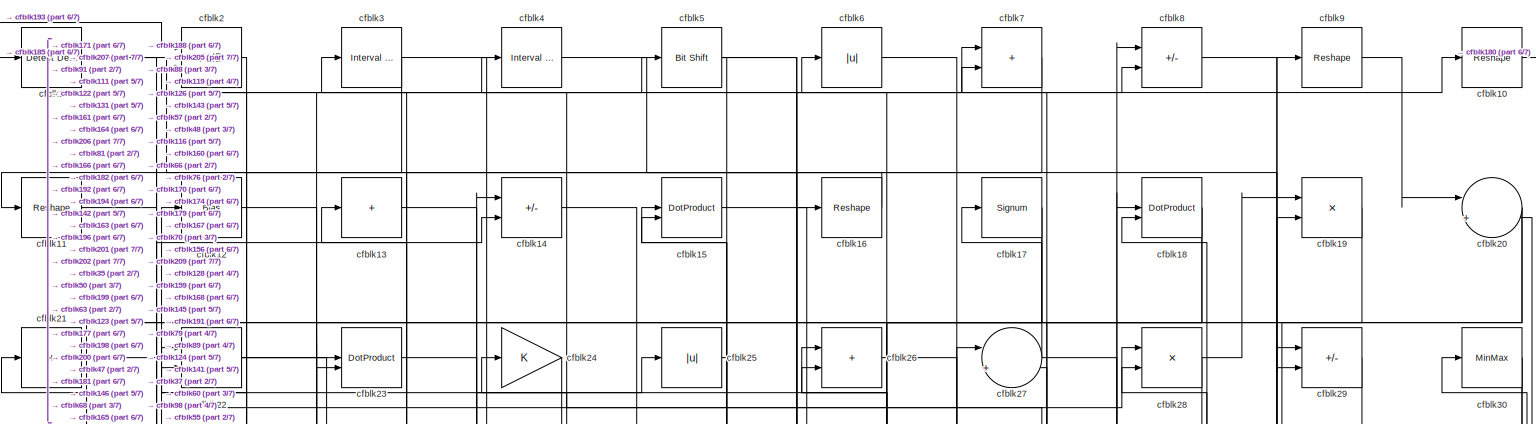
[diagram: root canvas - part 1/7, full width, top band]
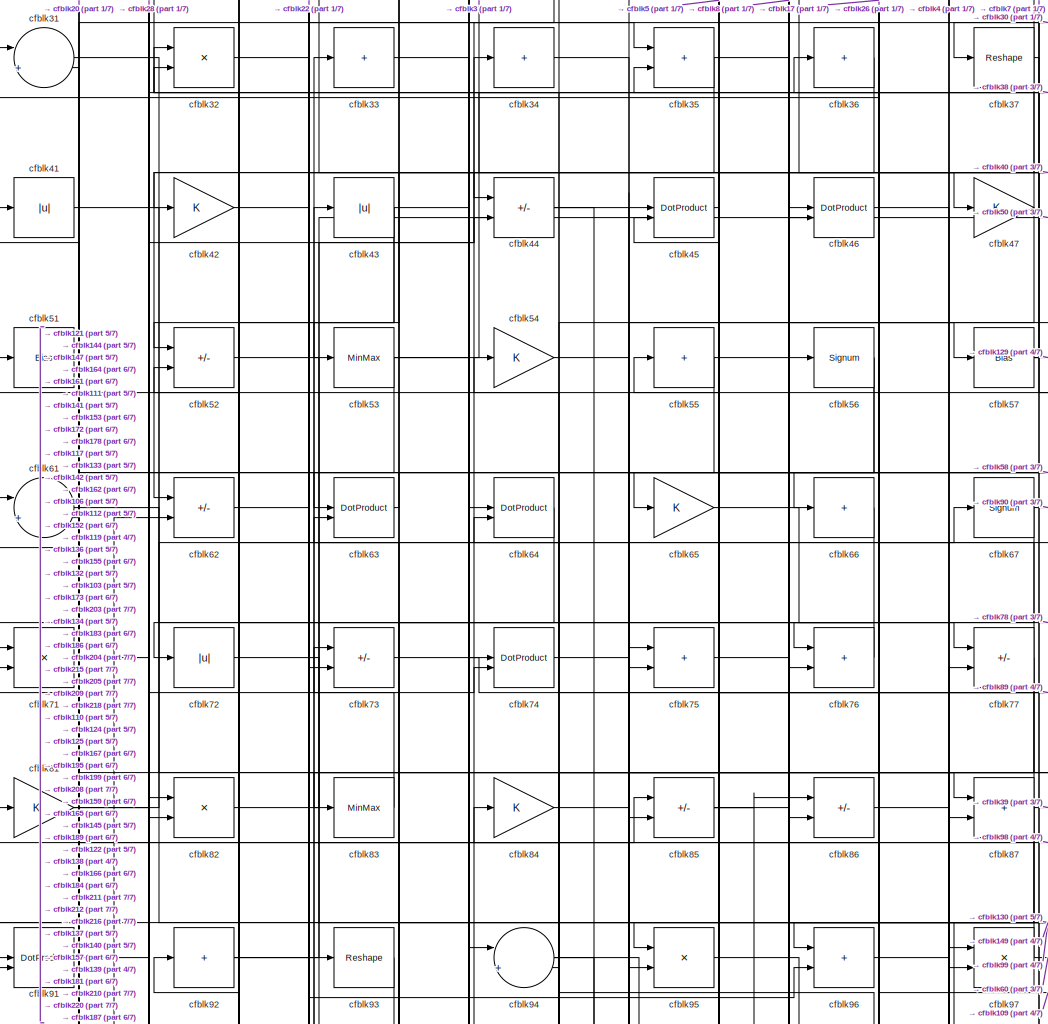
[diagram: root canvas - part 2/7, top center region]
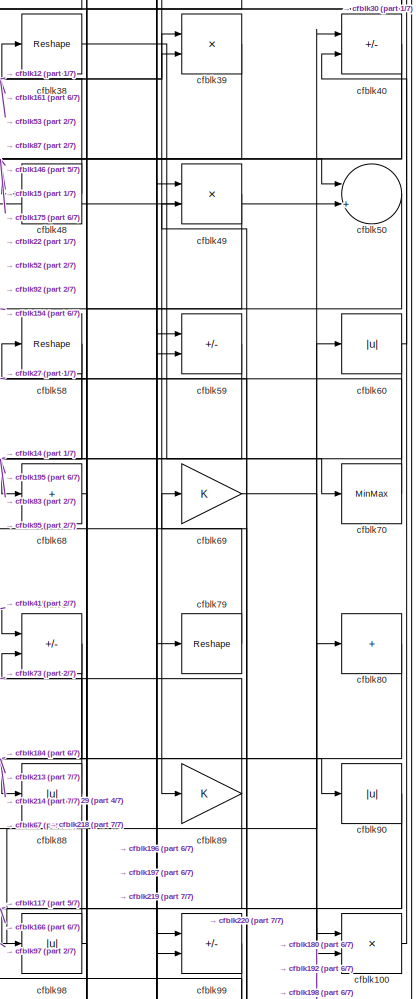
[diagram: root canvas - part 3/7, top right region]
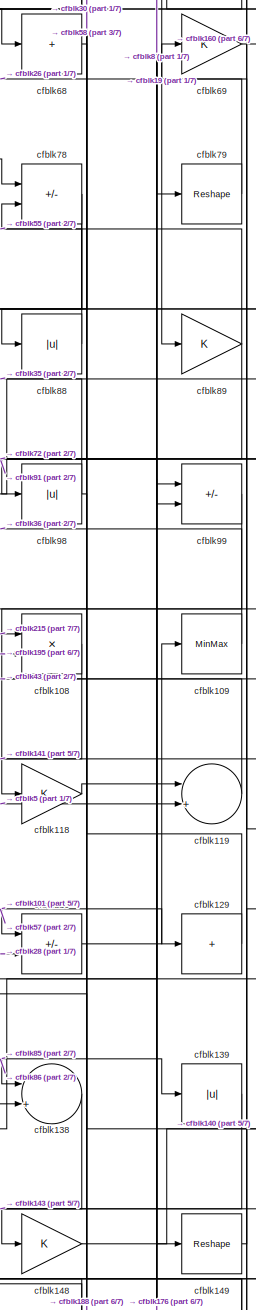
[diagram: root canvas - part 4/7, middle right region]
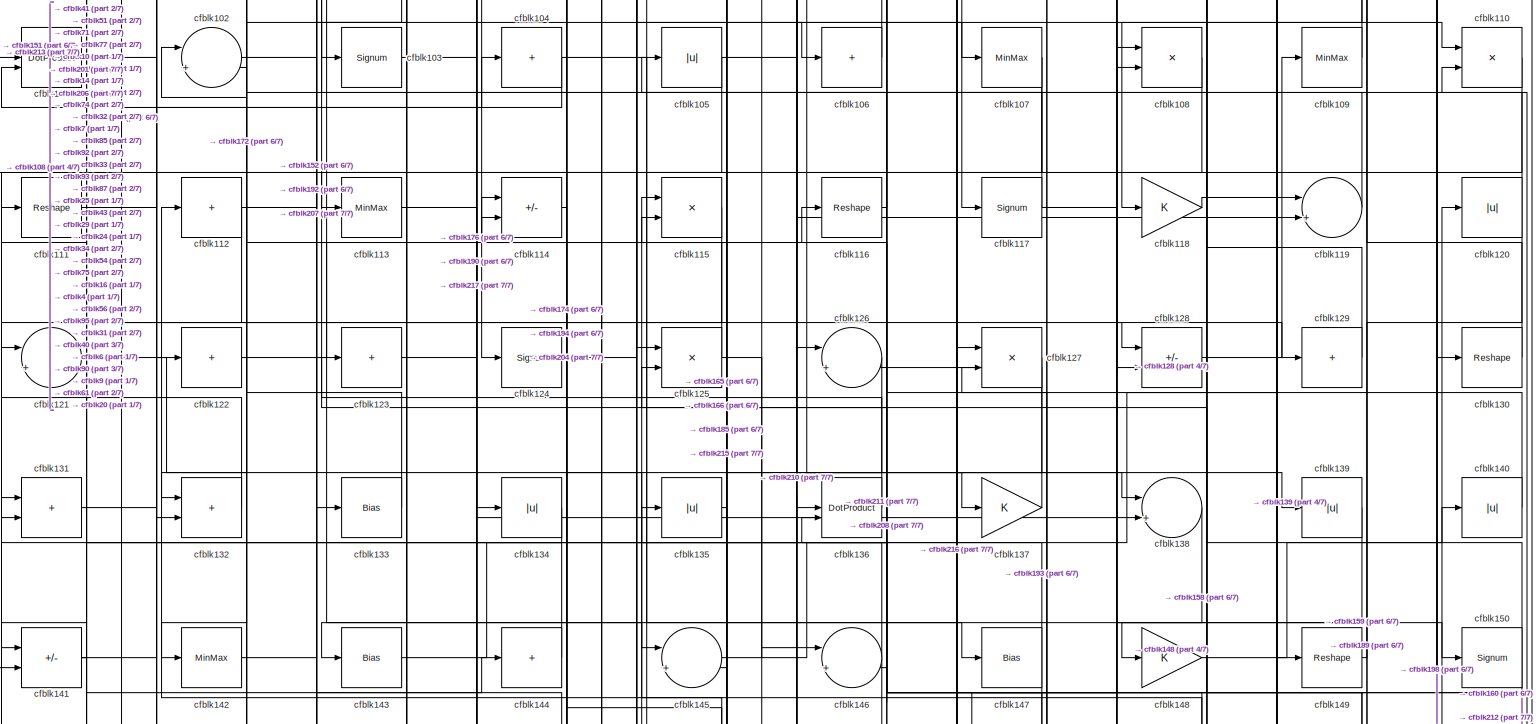
[diagram: root canvas - part 5/7, full width, middle band]
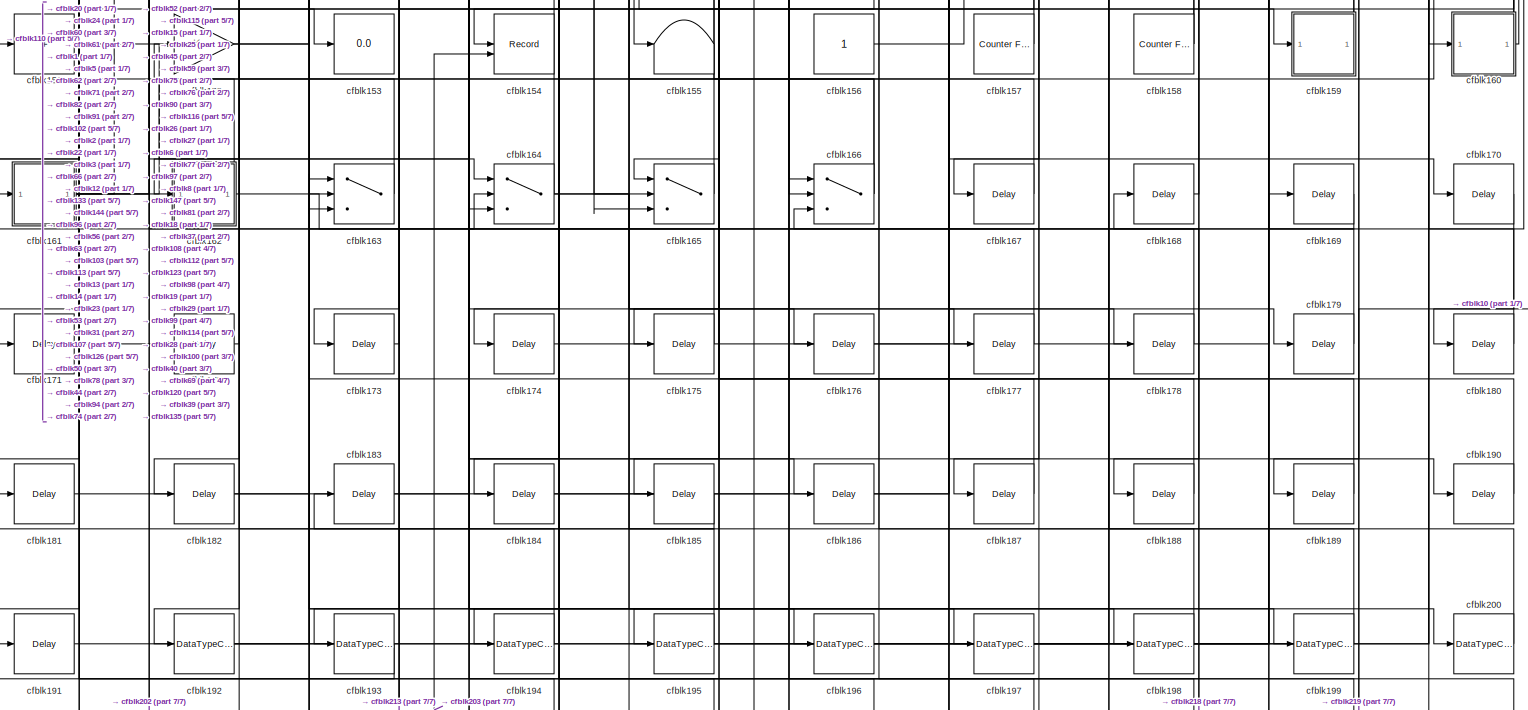
[diagram: root canvas - part 6/7, full width, bottom band]
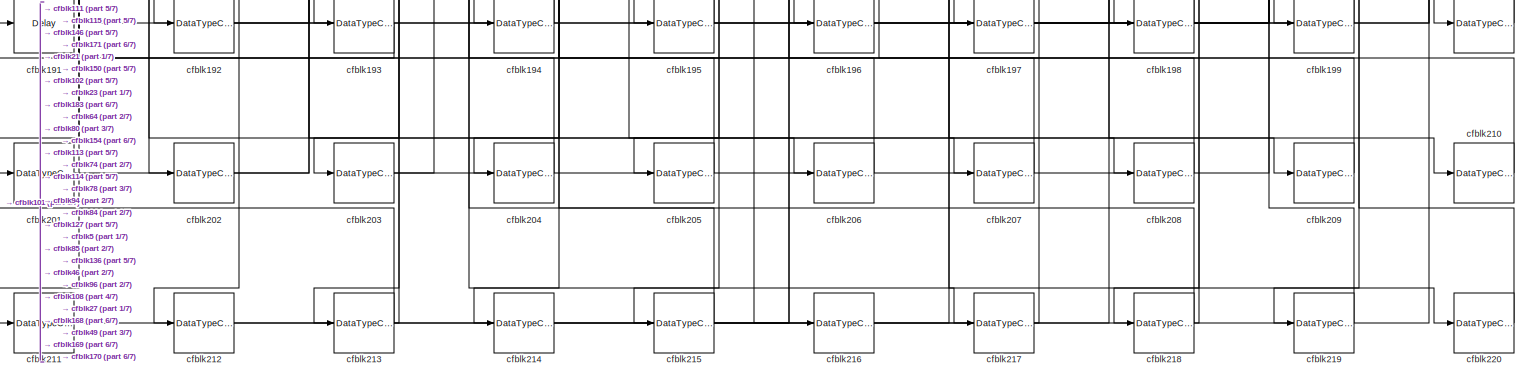
[diagram: root canvas - part 7/7, full width, bottom band]
MODEL slx_d883aa3ffad5
KIND model
CONFIG AbsTol = auto
CONFIG EnableMultiTasking = off
CONFIG FixedStep = auto
CONFIG MaxStep = auto
CONFIG MinStep = auto
CONFIG RelTol = 1e-3
CONFIG SampleTimeConstraint = Unconstrained
CONFIG SolverName = VariableStepAuto
CONFIG StartTime = 0.0
CONFIG StopTime = 10.0
BLOCK [Reference] cfblk1  REF=simulink/Logic and Bit
Operations/Detect
Decrease
  LibrarySourceBlock = hdlsllib/Logic and Bit\nOperations/Detect\nDecrease
  SourceBlock = simulink/Logic and Bit\nOperations/Detect\nDecrease
  SourceType = Detect Decrease
BLOCK [Reshape] cfblk10
BLOCK [Product] cfblk100
  Inputs = */
  RndMeth = Zero
  SaturateOnIntegerOverflow = on
BLOCK [DotProduct] cfblk101
  OutDataTypeStr = Inherit: Inherit via internal rule
BLOCK [Sum] cfblk102
  Inputs = |++
BLOCK [Signum] cfblk103
BLOCK [Sum] cfblk104
  IconShape = rectangular
  Inputs = +
BLOCK [Abs] cfblk105
  SaturateOnIntegerOverflow = off
BLOCK [Sum] cfblk106
  IconShape = rectangular
  Inputs = +
BLOCK [MinMax] cfblk107
BLOCK [Product] cfblk108
  Inputs = */
  RndMeth = Zero
  SaturateOnIntegerOverflow = on
BLOCK [MinMax] cfblk109
BLOCK [Reshape] cfblk11
BLOCK [Product] cfblk110
  Inputs = */
  RndMeth = Zero
  SaturateOnIntegerOverflow = on
BLOCK [Reshape] cfblk111
BLOCK [Sum] cfblk112
  IconShape = rectangular
  Inputs = +
BLOCK [MinMax] cfblk113
BLOCK [Sum] cfblk114
  IconShape = rectangular
  Inputs = +-
BLOCK [Product] cfblk115
  Inputs = */
  RndMeth = Zero
  SaturateOnIntegerOverflow = on
BLOCK [Reshape] cfblk116
BLOCK [Signum] cfblk117
BLOCK [Gain] cfblk118
BLOCK [Sum] cfblk119
  Inputs = |++
BLOCK [Bias] cfblk12
  Bias = 0.0
  SaturateOnIntegerOverflow = off
BLOCK [Abs] cfblk120
  SaturateOnIntegerOverflow = off
BLOCK [Sum] cfblk121
  Inputs = |++
BLOCK [Sum] cfblk122
  IconShape = rectangular
  Inputs = +
BLOCK [Sum] cfblk123
  IconShape = rectangular
  Inputs = +
BLOCK [Signum] cfblk124
BLOCK [Product] cfblk125
  Inputs = */
  RndMeth = Zero
  SaturateOnIntegerOverflow = on
BLOCK [Sum] cfblk126
  Inputs = |++
BLOCK [Product] cfblk127
  Inputs = */
  RndMeth = Zero
  SaturateOnIntegerOverflow = on
BLOCK [Sum] cfblk128
  IconShape = rectangular
  Inputs = +-
BLOCK [Sum] cfblk129
  IconShape = rectangular
  Inputs = +
BLOCK [Sum] cfblk13
  IconShape = rectangular
  Inputs = +
BLOCK [Reshape] cfblk130
BLOCK [Sum] cfblk131
  IconShape = rectangular
BLOCK [Sum] cfblk132
  IconShape = rectangular
BLOCK [Bias] cfblk133
  Bias = 0.0
  SaturateOnIntegerOverflow = off
BLOCK [Abs] cfblk134
  SaturateOnIntegerOverflow = off
BLOCK [Abs] cfblk135
  SaturateOnIntegerOverflow = off
BLOCK [DotProduct] cfblk136
  OutDataTypeStr = Inherit: Inherit via internal rule
BLOCK [Gain] cfblk137
BLOCK [Sum] cfblk138
  Inputs = |++
BLOCK [Abs] cfblk139
  SaturateOnIntegerOverflow = off
BLOCK [Sum] cfblk14
  IconShape = rectangular
  Inputs = +-
BLOCK [Abs] cfblk140
  SaturateOnIntegerOverflow = off
BLOCK [Sum] cfblk141
  IconShape = rectangular
  Inputs = +-
BLOCK [MinMax] cfblk142
BLOCK [Bias] cfblk143
  Bias = 0.0
  SaturateOnIntegerOverflow = off
BLOCK [Sum] cfblk144
  IconShape = rectangular
  Inputs = +
BLOCK [Sum] cfblk145
  Inputs = |++
BLOCK [Sum] cfblk146
  Inputs = |++
BLOCK [Bias] cfblk147
  Bias = 0.0
  SaturateOnIntegerOverflow = off
BLOCK [Gain] cfblk148
BLOCK [Reshape] cfblk149
BLOCK [DotProduct] cfblk15
  OutDataTypeStr = Inherit: Inherit via internal rule
BLOCK [Signum] cfblk150
BLOCK [Sum] cfblk151
  IconShape = rectangular
  Inputs = +
BLOCK [Gain] cfblk152
BLOCK [Display] cfblk153
  Decimation = 1
BLOCK [Record] cfblk154
  CompatibilityTag = XY
  FileSettingsInternal = {"entries":[{"content":{"excelSettings":{"content":{},"type":"Streamout.ExcelSettings"}},"type":"Streamout.FileSettingStorage","uuid":""}],"packageUris":["http:\/\/schema.mathworks.com\/mf0\/streamout_blocks\/R2020a"],"version":"1.0"}
  Layout = [1 1]
  SignalsInternal = {"entries":[{"content":{"signals":[{"content":{"blockPath":[],"dimensions":[1],"domain":"","lineColor":"#a2142f","plots":[1],"port":1,"sid":[""],"signalID":3756,"signalName":"cfblk50"},"type":"RecordBlkView.Signal","uuid":""},{"content":{"blockPath":[],"dimensions":[1],"domain":"","lineColor":"#139fff","plots":[1],"port":2,"sid":[""],"signalID":3760,"signalName":"cfblk203"},"type":"RecordBlkView.S...<+163ch>
  VisualizationBindings = {"xyplotplugin":{"info":[{"series":[{"bindingParametersList":[{"parameter":"X-Axis","signalID":3756,"signalName":"cfblk50"},{"parameter":"Y-Axis","signalID":3760,"signalName":"cfblk203"}],"seriesID":56446}],"subplotID":1}]}}
  st = -1
BLOCK [Terminator] cfblk155
BLOCK [Constant] cfblk156
  SampleTime = -1
BLOCK [Reference] cfblk157  REF=hdlsllib/Sources/Counter
Free-Running
  SourceBlock = hdlsllib/Sources/Counter\nFree-Running
  SourceType = Counter Free-Running
BLOCK [Reference] cfblk158  REF=hdlsllib/Sources/Counter
Free-Running
  SourceBlock = hdlsllib/Sources/Counter\nFree-Running
  SourceType = Counter Free-Running
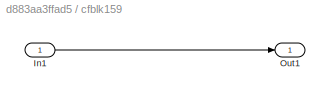
BLOCK [SubSystem] cfblk159
  LibrarySourceBlock = hdlsllib/Ports &\nSubsystems/Subsystem
BLOCK [Inport] cfblk159/In1
BLOCK [Outport] cfblk159/Out1
BLOCK [Reshape] cfblk16
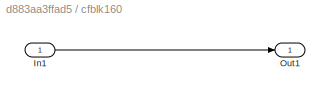
BLOCK [SubSystem] cfblk160
  LibrarySourceBlock = hdlsllib/Ports &\nSubsystems/Subsystem
BLOCK [Inport] cfblk160/In1
BLOCK [Outport] cfblk160/Out1
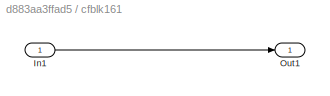
BLOCK [SubSystem] cfblk161
  LibrarySourceBlock = hdlsllib/Ports &\nSubsystems/Subsystem
BLOCK [Inport] cfblk161/In1
BLOCK [Outport] cfblk161/Out1
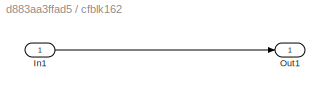
BLOCK [SubSystem] cfblk162
  LibrarySourceBlock = hdlsllib/Ports &\nSubsystems/Subsystem
BLOCK [Inport] cfblk162/In1
BLOCK [Outport] cfblk162/Out1
BLOCK [Switch] cfblk163
  InputSameDT = off
  SaturateOnIntegerOverflow = off
BLOCK [Switch] cfblk164
  InputSameDT = off
  SaturateOnIntegerOverflow = off
BLOCK [Switch] cfblk165
  InputSameDT = off
  SaturateOnIntegerOverflow = off
BLOCK [Switch] cfblk166
  InputSameDT = off
  SaturateOnIntegerOverflow = off
BLOCK [Delay] cfblk167
  InputPortMap = u0
  SampleTime = 1
BLOCK [Delay] cfblk168
  InputPortMap = u0
  SampleTime = 1
BLOCK [Delay] cfblk169
  InputPortMap = u0
  SampleTime = 1
BLOCK [Signum] cfblk17
BLOCK [Delay] cfblk170
  InputPortMap = u0
  SampleTime = 1
BLOCK [Delay] cfblk171
  InputPortMap = u0
  SampleTime = 1
BLOCK [Delay] cfblk172
  InputPortMap = u0
  SampleTime = 1
BLOCK [Delay] cfblk173
  InputPortMap = u0
  SampleTime = 1
BLOCK [Delay] cfblk174
  InputPortMap = u0
  SampleTime = 1
BLOCK [Delay] cfblk175
  InputPortMap = u0
  SampleTime = 1
BLOCK [Delay] cfblk176
  InputPortMap = u0
  SampleTime = 1
BLOCK [Delay] cfblk177
  InputPortMap = u0
  SampleTime = 1
BLOCK [Delay] cfblk178
  InputPortMap = u0
  SampleTime = 1
BLOCK [Delay] cfblk179
  InputPortMap = u0
  SampleTime = 1
BLOCK [DotProduct] cfblk18
  OutDataTypeStr = Inherit: Inherit via internal rule
BLOCK [Delay] cfblk180
  InputPortMap = u0
  SampleTime = 1
BLOCK [Delay] cfblk181
  InputPortMap = u0
  SampleTime = 1
BLOCK [Delay] cfblk182
  InputPortMap = u0
  SampleTime = 1
BLOCK [Delay] cfblk183
  InputPortMap = u0
  SampleTime = 1
BLOCK [Delay] cfblk184
  InputPortMap = u0
  SampleTime = 1
BLOCK [Delay] cfblk185
  InputPortMap = u0
  SampleTime = 1
BLOCK [Delay] cfblk186
  InputPortMap = u0
  SampleTime = 1
BLOCK [Delay] cfblk187
  InputPortMap = u0
  SampleTime = 1
BLOCK [Delay] cfblk188
  InputPortMap = u0
  SampleTime = 1
BLOCK [Delay] cfblk189
  InputPortMap = u0
  SampleTime = 1
BLOCK [Product] cfblk19
  Inputs = */
  RndMeth = Zero
  SaturateOnIntegerOverflow = on
BLOCK [Delay] cfblk190
  InputPortMap = u0
  SampleTime = 1
BLOCK [Delay] cfblk191
  InputPortMap = u0
  SampleTime = 1
BLOCK [DataTypeConversion] cfblk192
  RndMeth = Floor
  SaturateOnIntegerOverflow = off
BLOCK [DataTypeConversion] cfblk193
  OutDataTypeStr = uint8
  RndMeth = Floor
  SaturateOnIntegerOverflow = off
BLOCK [DataTypeConversion] cfblk194
  OutDataTypeStr = uint8
  RndMeth = Floor
  SaturateOnIntegerOverflow = off
BLOCK [DataTypeConversion] cfblk195
  RndMeth = Floor
  SaturateOnIntegerOverflow = off
BLOCK [DataTypeConversion] cfblk196
  OutDataTypeStr = uint8
  RndMeth = Floor
  SaturateOnIntegerOverflow = off
BLOCK [DataTypeConversion] cfblk197
  OutDataTypeStr = uint8
  RndMeth = Floor
  SaturateOnIntegerOverflow = off
BLOCK [DataTypeConversion] cfblk198
  RndMeth = Floor
  SaturateOnIntegerOverflow = off
BLOCK [DataTypeConversion] cfblk199
  OutDataTypeStr = uint8
  RndMeth = Floor
  SaturateOnIntegerOverflow = off
BLOCK [Logic] cfblk2
  AllPortsSameDT = off
  OutDataTypeStr = boolean
BLOCK [Sum] cfblk20
  Inputs = |++
BLOCK [DataTypeConversion] cfblk200
  OutDataTypeStr = uint8
  RndMeth = Floor
  SaturateOnIntegerOverflow = off
BLOCK [DataTypeConversion] cfblk201
  OutDataTypeStr = uint8
  RndMeth = Floor
  SaturateOnIntegerOverflow = off
BLOCK [DataTypeConversion] cfblk202
  OutDataTypeStr = uint8
  RndMeth = Floor
  SaturateOnIntegerOverflow = off
BLOCK [DataTypeConversion] cfblk203
  RndMeth = Floor
  SaturateOnIntegerOverflow = off
BLOCK [DataTypeConversion] cfblk204
  OutDataTypeStr = uint8
  RndMeth = Floor
  SaturateOnIntegerOverflow = off
BLOCK [DataTypeConversion] cfblk205
  OutDataTypeStr = uint8
  RndMeth = Floor
  SaturateOnIntegerOverflow = off
BLOCK [DataTypeConversion] cfblk206
  OutDataTypeStr = uint8
  RndMeth = Floor
  SaturateOnIntegerOverflow = off
BLOCK [DataTypeConversion] cfblk207
  OutDataTypeStr = uint8
  RndMeth = Floor
  SaturateOnIntegerOverflow = off
BLOCK [DataTypeConversion] cfblk208
  OutDataTypeStr = uint8
  RndMeth = Floor
  SaturateOnIntegerOverflow = off
BLOCK [DataTypeConversion] cfblk209
  OutDataTypeStr = uint8
  RndMeth = Floor
  SaturateOnIntegerOverflow = off
BLOCK [Sum] cfblk21
  IconShape = rectangular
  Inputs = +
BLOCK [DataTypeConversion] cfblk210
  OutDataTypeStr = uint8
  RndMeth = Floor
  SaturateOnIntegerOverflow = off
BLOCK [DataTypeConversion] cfblk211
  OutDataTypeStr = uint8
  RndMeth = Floor
  SaturateOnIntegerOverflow = off
BLOCK [DataTypeConversion] cfblk212
  OutDataTypeStr = uint8
  RndMeth = Floor
  SaturateOnIntegerOverflow = off
BLOCK [DataTypeConversion] cfblk213
  RndMeth = Floor
  SaturateOnIntegerOverflow = off
BLOCK [DataTypeConversion] cfblk214
  OutDataTypeStr = uint8
  RndMeth = Floor
  SaturateOnIntegerOverflow = off
BLOCK [DataTypeConversion] cfblk215
  RndMeth = Floor
  SaturateOnIntegerOverflow = off
BLOCK [DataTypeConversion] cfblk216
  OutDataTypeStr = uint8
  RndMeth = Floor
  SaturateOnIntegerOverflow = off
BLOCK [DataTypeConversion] cfblk217
  OutDataTypeStr = uint8
  RndMeth = Floor
  SaturateOnIntegerOverflow = off
BLOCK [DataTypeConversion] cfblk218
  RndMeth = Floor
  SaturateOnIntegerOverflow = off
BLOCK [DataTypeConversion] cfblk219
  OutDataTypeStr = uint8
  RndMeth = Floor
  SaturateOnIntegerOverflow = off
BLOCK [Product] cfblk22
  Inputs = */
  RndMeth = Zero
  SaturateOnIntegerOverflow = on
BLOCK [DataTypeConversion] cfblk220
  OutDataTypeStr = uint8
  RndMeth = Floor
  SaturateOnIntegerOverflow = off
BLOCK [DotProduct] cfblk23
  OutDataTypeStr = Inherit: Inherit via internal rule
BLOCK [Gain] cfblk24
BLOCK [Abs] cfblk25
  SaturateOnIntegerOverflow = off
BLOCK [Sum] cfblk26
  IconShape = rectangular
BLOCK [Sum] cfblk27
  Inputs = |++
BLOCK [Product] cfblk28
  Inputs = */
  RndMeth = Zero
  SaturateOnIntegerOverflow = on
BLOCK [Sum] cfblk29
  IconShape = rectangular
  Inputs = +-
BLOCK [Reference] cfblk3  REF=hdlsllib/Logic and Bit
Operations/Interval Test
  SourceBlock = hdlsllib/Logic and Bit\nOperations/Interval Test
  SourceType = Interval Test
BLOCK [MinMax] cfblk30
BLOCK [Sum] cfblk31
  Inputs = |++
BLOCK [Product] cfblk32
  Inputs = */
  RndMeth = Zero
  SaturateOnIntegerOverflow = on
BLOCK [Sum] cfblk33
  IconShape = rectangular
  Inputs = +
BLOCK [Sum] cfblk34
  IconShape = rectangular
  Inputs = +
BLOCK [Sum] cfblk35
  IconShape = rectangular
BLOCK [Sum] cfblk36
  IconShape = rectangular
  Inputs = +
BLOCK [Reshape] cfblk37
BLOCK [Reshape] cfblk38
BLOCK [Product] cfblk39
  Inputs = */
  RndMeth = Zero
  SaturateOnIntegerOverflow = on
BLOCK [Reference] cfblk4  REF=hdlsllib/Logic and Bit
Operations/Interval Test
  SourceBlock = hdlsllib/Logic and Bit\nOperations/Interval Test
  SourceType = Interval Test
BLOCK [Sum] cfblk40
  IconShape = rectangular
  Inputs = +-
BLOCK [Abs] cfblk41
  SaturateOnIntegerOverflow = off
BLOCK [Gain] cfblk42
BLOCK [Abs] cfblk43
  SaturateOnIntegerOverflow = off
BLOCK [Sum] cfblk44
  IconShape = rectangular
  Inputs = +-
BLOCK [DotProduct] cfblk45
  OutDataTypeStr = Inherit: Inherit via internal rule
BLOCK [DotProduct] cfblk46
  OutDataTypeStr = Inherit: Inherit via internal rule
BLOCK [Gain] cfblk47
BLOCK [Bias] cfblk48
  Bias = 0.0
  SaturateOnIntegerOverflow = off
BLOCK [Product] cfblk49
  Inputs = */
  RndMeth = Zero
  SaturateOnIntegerOverflow = on
BLOCK [Reference] cfblk5  REF=hdlsllib/Logic and Bit
Operations/Bit Shift
  SourceBlock = hdlsllib/Logic and Bit\nOperations/Bit Shift
  SourceType = Bit Shift
BLOCK [Sum] cfblk50
  Inputs = |++
BLOCK [Bias] cfblk51
  Bias = 0.0
  SaturateOnIntegerOverflow = off
BLOCK [Sum] cfblk52
  IconShape = rectangular
  Inputs = +-
BLOCK [MinMax] cfblk53
BLOCK [Gain] cfblk54
BLOCK [Sum] cfblk55
  IconShape = rectangular
  Inputs = +
BLOCK [Signum] cfblk56
BLOCK [Bias] cfblk57
  Bias = 0.0
  SaturateOnIntegerOverflow = off
BLOCK [Reshape] cfblk58
BLOCK [Sum] cfblk59
  IconShape = rectangular
  Inputs = +-
BLOCK [Abs] cfblk6
  SaturateOnIntegerOverflow = off
BLOCK [Abs] cfblk60
  SaturateOnIntegerOverflow = off
BLOCK [Sum] cfblk61
  Inputs = |++
BLOCK [Sum] cfblk62
  IconShape = rectangular
  Inputs = +-
BLOCK [DotProduct] cfblk63
  OutDataTypeStr = Inherit: Inherit via internal rule
BLOCK [DotProduct] cfblk64
  OutDataTypeStr = Inherit: Inherit via internal rule
BLOCK [Gain] cfblk65
BLOCK [Sum] cfblk66
  IconShape = rectangular
  Inputs = +
BLOCK [Signum] cfblk67
BLOCK [Sum] cfblk68
  IconShape = rectangular
  Inputs = +
BLOCK [Gain] cfblk69
BLOCK [Sum] cfblk7
  IconShape = rectangular
BLOCK [MinMax] cfblk70
BLOCK [Product] cfblk71
  Inputs = */
  RndMeth = Zero
  SaturateOnIntegerOverflow = on
BLOCK [Abs] cfblk72
  SaturateOnIntegerOverflow = off
BLOCK [Sum] cfblk73
  IconShape = rectangular
  Inputs = +-
BLOCK [DotProduct] cfblk74
  OutDataTypeStr = Inherit: Inherit via internal rule
BLOCK [Sum] cfblk75
  IconShape = rectangular
BLOCK [Sum] cfblk76
  IconShape = rectangular
BLOCK [Sum] cfblk77
  IconShape = rectangular
  Inputs = +-
BLOCK [Sum] cfblk78
  IconShape = rectangular
  Inputs = +-
BLOCK [Reshape] cfblk79
BLOCK [Sum] cfblk8
  IconShape = rectangular
  Inputs = +-
BLOCK [Sum] cfblk80
  IconShape = rectangular
  Inputs = +
BLOCK [Gain] cfblk81
BLOCK [Product] cfblk82
  Inputs = */
  RndMeth = Zero
  SaturateOnIntegerOverflow = on
BLOCK [MinMax] cfblk83
BLOCK [Gain] cfblk84
BLOCK [Sum] cfblk85
  IconShape = rectangular
  Inputs = +-
BLOCK [Sum] cfblk86
  IconShape = rectangular
  Inputs = +-
BLOCK [Sum] cfblk87
  IconShape = rectangular
BLOCK [Abs] cfblk88
  SaturateOnIntegerOverflow = off
BLOCK [Gain] cfblk89
BLOCK [Reshape] cfblk9
BLOCK [Abs] cfblk90
  SaturateOnIntegerOverflow = off
BLOCK [DotProduct] cfblk91
  OutDataTypeStr = Inherit: Inherit via internal rule
BLOCK [Sum] cfblk92
  IconShape = rectangular
  Inputs = +
BLOCK [Reshape] cfblk93
BLOCK [Sum] cfblk94
  Inputs = |++
BLOCK [Product] cfblk95
  Inputs = */
  RndMeth = Zero
  SaturateOnIntegerOverflow = on
BLOCK [Sum] cfblk96
  IconShape = rectangular
BLOCK [Product] cfblk97
  Inputs = */
  RndMeth = Zero
  SaturateOnIntegerOverflow = on
BLOCK [Abs] cfblk98
  SaturateOnIntegerOverflow = off
BLOCK [Sum] cfblk99
  IconShape = rectangular
  Inputs = +-
LINE cfblk100:1 -> cfblk40:2
LINE cfblk101:1 -> cfblk128:1
LINE cfblk102:1 -> cfblk207:1
LINE cfblk103:1 -> cfblk176:1
NET cfblk104:1 -> cfblk101:2, cfblk147:1
NET cfblk105:1 -> cfblk107:1, cfblk113:1
LINE cfblk106:1 -> cfblk32:1
NET cfblk107:1 -> cfblk132:2, cfblk194:1
LINE cfblk108:1 -> cfblk141:2
LINE cfblk109:1 -> cfblk36:1
LINE cfblk10:1 -> cfblk180:1
LINE cfblk110:1 -> cfblk151:1
NET cfblk111:1 -> cfblk104:1, cfblk14:2, cfblk74:2
NET cfblk112:1 -> cfblk131:1, cfblk85:1
NET cfblk113:1 -> cfblk190:1, cfblk217:1
LINE cfblk114:1 -> cfblk204:1
LINE cfblk115:1 -> cfblk201:1
LINE cfblk116:1 -> cfblk6:1
NET cfblk117:1 -> cfblk150:1, cfblk32:2
LINE cfblk118:1 -> cfblk119:1
LINE cfblk119:1 -> cfblk43:1
LINE cfblk11:1 -> cfblk122:1
NET cfblk120:1 -> cfblk105:1, cfblk189:1
LINE cfblk121:1 -> cfblk145:1
LINE cfblk122:1 -> cfblk56:1
LINE cfblk123:1 -> cfblk25:1
LINE cfblk124:1 -> cfblk75:2
NET cfblk125:1 -> cfblk102:1, cfblk146:1
LINE cfblk126:1 -> cfblk174:1
LINE cfblk127:1 -> cfblk215:1
LINE cfblk128:1 -> cfblk109:1
LINE cfblk129:1 -> cfblk58:1
LINE cfblk12:1 -> cfblk196:1
LINE cfblk130:1 -> cfblk51:1
LINE cfblk131:1 -> cfblk10:1
LINE cfblk132:1 -> cfblk121:1
LINE cfblk133:1 -> cfblk92:1
LINE cfblk134:1 -> cfblk131:2
LINE cfblk135:1 -> cfblk185:1
LINE cfblk136:1 -> cfblk33:1
LINE cfblk137:1 -> cfblk126:2
LINE cfblk138:1 -> cfblk148:1
LINE cfblk139:1 -> cfblk143:1
LINE cfblk13:1 -> cfblk198:1
LINE cfblk140:1 -> cfblk31:1
NET cfblk141:1 -> cfblk20:2, cfblk44:2
LINE cfblk142:1 -> cfblk7:1
LINE cfblk143:1 -> cfblk16:1
LINE cfblk144:1 -> cfblk41:1
LINE cfblk145:1 -> cfblk9:1
NET cfblk146:1 -> cfblk211:1, cfblk24:1
NET cfblk147:1 -> cfblk193:1, cfblk71:2
LINE cfblk148:1 -> cfblk140:1
LINE cfblk149:1 -> cfblk69:1
LINE cfblk14:1 -> cfblk68:1
NET cfblk150:1 -> cfblk125:2, cfblk212:1
LINE cfblk151:1 -> cfblk164:1
NET cfblk152:1 -> cfblk144:1, cfblk96:2
LINE cfblk156:1 -> cfblk8:1
LINE cfblk157:1 -> cfblk81:1
NET cfblk158:1 -> cfblk112:1, cfblk123:1
LINE cfblk159/In1:1 -> cfblk159/Out1:1
NET cfblk159:1 -> cfblk114:1, cfblk28:2
LINE cfblk15:1 -> cfblk48:1
LINE cfblk160/In1:1 -> cfblk160/Out1:1
NET cfblk160:1 -> cfblk110:2, cfblk135:1, cfblk22:1
LINE cfblk161/In1:1 -> cfblk161/Out1:1
NET cfblk161:1 -> cfblk120:1, cfblk191:1, cfblk39:2, cfblk5:1, cfblk62:2
LINE cfblk162/In1:1 -> cfblk162/Out1:1
NET cfblk162:1 -> cfblk164:2, cfblk61:1
LINE cfblk163:1 -> cfblk152:1
NET cfblk164:1 -> cfblk177:1, cfblk178:1, cfblk31:2
LINE cfblk165:1 -> cfblk114:2
NET cfblk166:1 -> cfblk115:1, cfblk22:2
LINE cfblk167:1 -> cfblk75:1
LINE cfblk168:1 -> cfblk18:2
LINE cfblk169:1 -> cfblk166:3
LINE cfblk16:1 -> cfblk11:1
LINE cfblk170:1 -> cfblk219:1
LINE cfblk171:1 -> cfblk202:1
LINE cfblk172:1 -> cfblk102:2
LINE cfblk173:1 -> cfblk63:2
LINE cfblk174:1 -> cfblk27:1
LINE cfblk175:1 -> cfblk163:1
LINE cfblk176:1 -> cfblk99:1
LINE cfblk177:1 -> cfblk14:1
LINE cfblk178:1 -> cfblk82:1
LINE cfblk179:1 -> cfblk29:1
NET cfblk17:1 -> cfblk66:1, cfblk76:1
LINE cfblk180:1 -> cfblk100:1
LINE cfblk181:1 -> cfblk97:1
LINE cfblk182:1 -> cfblk197:1
LINE cfblk183:1 -> cfblk94:1
LINE cfblk184:1 -> cfblk76:2
LINE cfblk185:1 -> cfblk1:1
LINE cfblk186:1 -> cfblk77:2
LINE cfblk187:1 -> cfblk163:2
LINE cfblk188:1 -> cfblk15:2
LINE cfblk189:1 -> cfblk45:2
NET cfblk18:1 -> cfblk163:3, cfblk167:1
LINE cfblk190:1 -> cfblk115:2
LINE cfblk191:1 -> cfblk19:2
NET cfblk192:1 -> cfblk133:1, cfblk40:1
LINE cfblk193:1 -> cfblk2:1
LINE cfblk194:1 -> cfblk2:2
NET cfblk195:1 -> cfblk108:2, cfblk45:1
LINE cfblk196:1 -> cfblk59:1
LINE cfblk197:1 -> cfblk59:2
NET cfblk198:1 -> cfblk100:2, cfblk116:1
LINE cfblk199:1 -> cfblk13:1
LINE cfblk19:1 -> cfblk89:1
NET cfblk1:1 -> cfblk164:3, cfblk29:2
LINE cfblk200:1 -> cfblk18:1
LINE cfblk201:1 -> cfblk23:1
LINE cfblk202:1 -> cfblk23:2
NET cfblk203:1 -> cfblk154:2, cfblk169:1
LINE cfblk204:1 -> cfblk64:1
LINE cfblk205:1 -> cfblk64:2
LINE cfblk206:1 -> cfblk111:1
LINE cfblk207:1 -> cfblk21:1
LINE cfblk208:1 -> cfblk136:2
LINE cfblk209:1 -> cfblk84:1
NET cfblk20:1 -> cfblk171:1, cfblk91:1
LINE cfblk210:1 -> cfblk136:1
LINE cfblk211:1 -> cfblk46:1
LINE cfblk212:1 -> cfblk46:2
NET cfblk213:1 -> cfblk101:1, cfblk183:1
LINE cfblk214:1 -> cfblk80:1
NET cfblk215:1 -> cfblk108:1, cfblk74:1
LINE cfblk216:1 -> cfblk127:1
LINE cfblk217:1 -> cfblk127:2
NET cfblk218:1 -> cfblk168:1, cfblk94:2
LINE cfblk219:1 -> cfblk49:1
LINE cfblk21:1 -> cfblk206:1
LINE cfblk220:1 -> cfblk49:2
NET cfblk22:1 -> cfblk35:1, cfblk50:1
LINE cfblk23:1 -> cfblk200:1
LINE cfblk24:1 -> cfblk181:1
LINE cfblk25:1 -> cfblk165:1
LINE cfblk26:1 -> cfblk170:1
NET cfblk27:1 -> cfblk17:1, cfblk209:1
NET cfblk28:1 -> cfblk128:2, cfblk19:1
LINE cfblk29:1 -> cfblk124:1
LINE cfblk2:1 -> cfblk192:1
NET cfblk30:1 -> cfblk37:1, cfblk98:1
LINE cfblk31:1 -> cfblk86:2
LINE cfblk32:1 -> cfblk44:1
LINE cfblk33:1 -> cfblk134:1
LINE cfblk34:1 -> cfblk125:1
NET cfblk35:1 -> cfblk73:2, cfblk99:2
LINE cfblk36:1 -> cfblk42:1
NET cfblk37:1 -> cfblk187:1, cfblk4:1, cfblk53:1
LINE cfblk38:1 -> cfblk70:1
LINE cfblk39:1 -> cfblk175:1
NET cfblk3:1 -> cfblk182:1, cfblk47:1
NET cfblk40:1 -> cfblk146:2, cfblk52:1
LINE cfblk41:1 -> cfblk78:1
LINE cfblk42:1 -> cfblk87:2
NET cfblk43:1 -> cfblk138:2, cfblk142:1, cfblk62:1
NET cfblk44:1 -> cfblk165:2, cfblk87:1
LINE cfblk45:1 -> cfblk65:1
LINE cfblk46:1 -> cfblk210:1
NET cfblk47:1 -> cfblk26:2, cfblk85:2
LINE cfblk48:1 -> cfblk12:1
LINE cfblk49:1 -> cfblk218:1
LINE cfblk4:1 -> cfblk126:1
LINE cfblk50:1 -> cfblk154:1
LINE cfblk51:1 -> cfblk141:1
LINE cfblk52:1 -> cfblk155:1
NET cfblk53:1 -> cfblk186:1, cfblk38:1, cfblk71:1
LINE cfblk54:1 -> cfblk110:1
NET cfblk55:1 -> cfblk82:2, cfblk8:2
NET cfblk56:1 -> cfblk145:2, cfblk173:1
NET cfblk57:1 -> cfblk129:1, cfblk7:2
NET cfblk58:1 -> cfblk83:1, cfblk95:2
LINE cfblk59:1 -> cfblk195:1
NET cfblk5:1 -> cfblk119:2, cfblk205:1, cfblk57:1
NET cfblk60:1 -> cfblk161:1, cfblk30:1
LINE cfblk61:1 -> cfblk130:1
LINE cfblk62:1 -> cfblk93:1
LINE cfblk63:1 -> cfblk3:1
LINE cfblk64:1 -> cfblk203:1
LINE cfblk65:1 -> cfblk77:1
LINE cfblk66:1 -> cfblk162:1
NET cfblk67:1 -> cfblk90:1, cfblk96:1
LINE cfblk68:1 -> cfblk88:1
LINE cfblk69:1 -> cfblk160:1
LINE cfblk6:1 -> cfblk179:1
LINE cfblk70:1 -> cfblk27:2
LINE cfblk71:1 -> cfblk153:1
LINE cfblk72:1 -> cfblk149:1
LINE cfblk73:1 -> cfblk78:2
LINE cfblk74:1 -> cfblk199:1
LINE cfblk75:1 -> cfblk166:1
LINE cfblk76:1 -> cfblk72:1
NET cfblk77:1 -> cfblk121:2, cfblk52:2, cfblk97:2
NET cfblk78:1 -> cfblk184:1, cfblk214:1
LINE cfblk79:1 -> cfblk26:1
LINE cfblk7:1 -> cfblk63:1
LINE cfblk80:1 -> cfblk213:1
NET cfblk81:1 -> cfblk28:1, cfblk67:1
LINE cfblk82:1 -> cfblk34:1
LINE cfblk83:1 -> cfblk73:1
LINE cfblk84:1 -> cfblk208:1
NET cfblk85:1 -> cfblk138:1, cfblk216:1, cfblk86:1
LINE cfblk86:1 -> cfblk139:1
NET cfblk87:1 -> cfblk103:1, cfblk39:1, cfblk54:1, cfblk95:1
LINE cfblk88:1 -> cfblk15:1
NET cfblk89:1 -> cfblk55:1, cfblk91:2
LINE cfblk8:1 -> cfblk79:1
NET cfblk90:1 -> cfblk117:1, cfblk166:2
LINE cfblk91:1 -> cfblk172:1
NET cfblk92:1 -> cfblk106:1, cfblk50:2
LINE cfblk93:1 -> cfblk132:1
NET cfblk94:1 -> cfblk159:1, cfblk165:3
LINE cfblk95:1 -> cfblk137:1
LINE cfblk96:1 -> cfblk220:1
NET cfblk97:1 -> cfblk60:1, cfblk61:2
NET cfblk98:1 -> cfblk188:1, cfblk35:2
LINE cfblk99:1 -> cfblk118:1
LINE cfblk9:1 -> cfblk20:1
note: NET lines group one-source signal fan-out (src -> all destinations, sorted); 1:1 wires keep LINE
